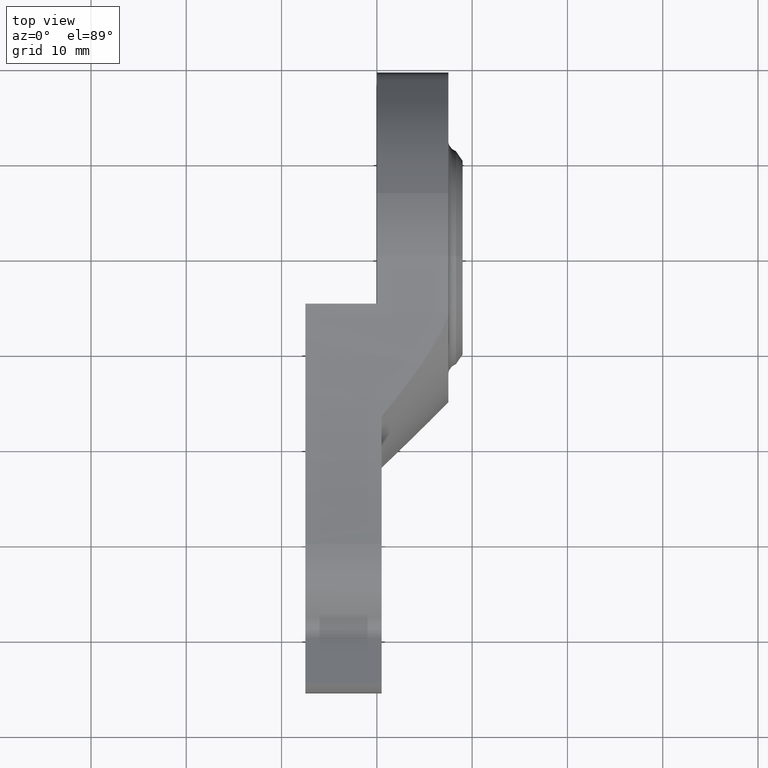
[diagram: clean part render]
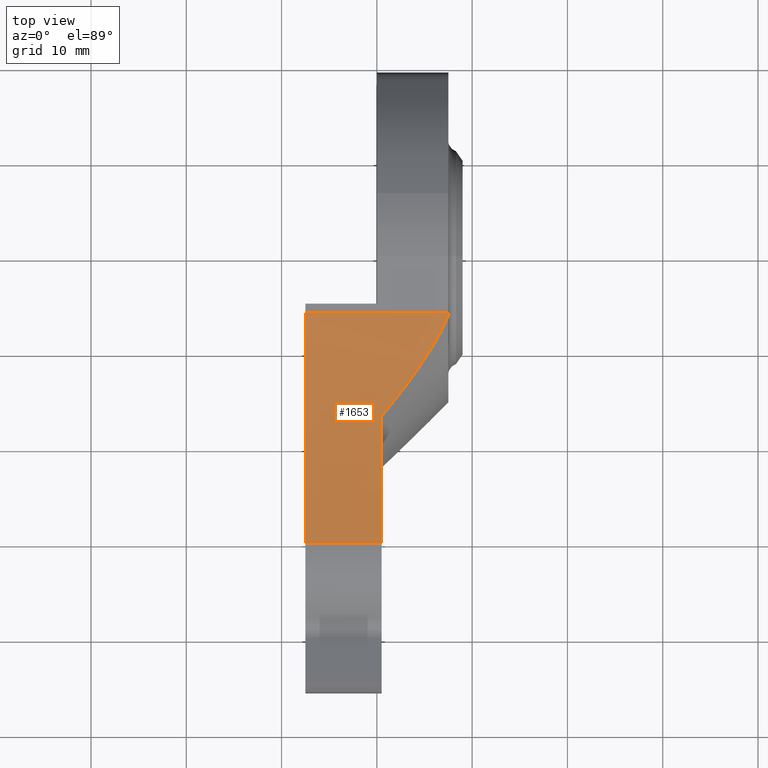
[diagram: same view with one face highlighted and labeled with its STEP entity id]
A machine part, top view. The second image highlights one B-rep face of the part: STEP entity #1653.
In plain terms, the highlighted cylindrical surface (partial cylindrical patch) has radius 100 mm, axis along (1, 0, 0).
Its self-contained STEP definition (entity closure, byte-faithful):
#4 = DIRECTION ( 'NONE',  ( 0.0000000000000000000, 0.0000000000000000000, -1.000000000000000000 ) ) ;
#30 = CARTESIAN_POINT ( 'NONE',  ( 0.4999999999999981681, -16.90208000679909617, 14.37761424728591564 ) ) ;
#32 = CARTESIAN_POINT ( 'NONE',  ( 7.500000000000000000, -6.379320389034159433, 13.78551309796095481 ) ) ;
#62 = CARTESIAN_POINT ( 'NONE',  ( -7.500000000000000000, -30.30422941978169504, 16.77569103434340647 ) ) ;
#128 = DIRECTION ( 'NONE',  ( -1.000000000000000000, -0.0000000000000000000, -0.0000000000000000000 ) ) ;
#165 = CARTESIAN_POINT ( 'NONE',  ( 7.081473535153784304, -7.368431683371166940, 13.78896303512962263 ) ) ;
#225 = VERTEX_POINT ( 'NONE', #1518 ) ;
#234 = LINE ( 'NONE', #1703, #1771 ) ;
#372 = CARTESIAN_POINT ( 'NONE',  ( 7.500000000000000000, -6.030530904630578171, 113.7849048255887681 ) ) ;
#403 = EDGE_LOOP ( 'NONE', ( #718, #1305, #1720, #1144, #1613, #695 ) ) ;
#467 = CARTESIAN_POINT ( 'NONE',  ( 6.592569785825927120, -8.309922148474180759, 13.80671280323406691 ) ) ;
#471 = DIRECTION ( 'NONE',  ( 1.000000000000000000, 0.0000000000000000000, 0.0000000000000000000 ) ) ;
#485 = DIRECTION ( 'NONE',  ( 1.000000000000000000, 0.0000000000000000000, 0.0000000000000000000 ) ) ;
#511 = DIRECTION ( 'NONE',  ( 1.000000000000000000, 0.0000000000000000000, 0.0000000000000000000 ) ) ;
#530 = DIRECTION ( 'NONE',  ( 0.0000000000000000000, 0.0000000000000000000, 1.000000000000000000 ) ) ;
#534 = CIRCLE ( 'NONE', #1893, 99.99999999999998579 ) ;
#555 = EDGE_CURVE ( 'NONE', #897, #1729, #1563, .T. ) ;
#609 = CARTESIAN_POINT ( 'NONE',  ( 4.958070269503722649, -11.02020417791528217, 13.90570156137078683 ) ) ;
#629 = CARTESIAN_POINT ( 'NONE',  ( 0.5000000000000000000, -30.30422941978169504, 16.77569103434340292 ) ) ;
#647 = VECTOR ( 'NONE', #485, 1000.000000000000000 ) ;
#695 = ORIENTED_EDGE ( 'NONE', *, *, #555, .F. ) ;
#718 = ORIENTED_EDGE ( 'NONE', *, *, #1007, .F. ) ;
#754 = CARTESIAN_POINT ( 'NONE',  ( 3.130957710406474526, -13.59878353045965760, 14.06819194200154044 ) ) ;
#897 = VERTEX_POINT ( 'NONE', #1036 ) ;
#903 = CARTESIAN_POINT ( 'NONE',  ( 1.176575255707567935, -16.08943392507654124, 14.28874026501827110 ) ) ;
#904 = AXIS2_PLACEMENT_3D ( 'NONE', #372, #1411, #530 ) ;
#923 = CARTESIAN_POINT ( 'NONE',  ( -46.24134013796409448, -6.030530904630578171, 13.78490482558877872 ) ) ;
#926 = VERTEX_POINT ( 'NONE', #1651 ) ;
#945 = EDGE_CURVE ( 'NONE', #1064, #225, #1133, .T. ) ;
#1003 = VERTEX_POINT ( 'NONE', #629 ) ;
#1005 = CARTESIAN_POINT ( 'NONE',  ( 0.5000000000000004441, -6.030530904630578171, 113.7849048255887681 ) ) ;
#1007 = EDGE_CURVE ( 'NONE', #225, #897, #1848, .T. ) ;
#1036 = CARTESIAN_POINT ( 'NONE',  ( 7.500000000000000000, -6.030530904630578171, 13.78490482558877872 ) ) ;
#1044 = B_SPLINE_CURVE_WITH_KNOTS ( 'NONE', 3,
 ( #1046, #165, #467, #1501, #609, #1665, #754, #1810, #903, #30 ),
 .UNSPECIFIED., .F., .F.,
 ( 4, 2, 2, 2, 4 ),
 ( 5.038543160167370944E-07, 0.003163562636377010955, 0.006326621418438005753, 0.009489680200498999685, 0.01265273898255999362 ),
 .UNSPECIFIED. ) ;
#1046 = CARTESIAN_POINT ( 'NONE',  ( 7.500000000000000000, -6.379320389034159433, 13.78551309796095481 ) ) ;
#1064 = VERTEX_POINT ( 'NONE', #62 ) ;
#1081 = FACE_OUTER_BOUND ( 'NONE', #403, .T. ) ;
#1087 = EDGE_CURVE ( 'NONE', #1064, #1003, #234, .T. ) ;
#1133 = CIRCLE ( 'NONE', #1611, 99.99999999999998579 ) ;
#1144 = ORIENTED_EDGE ( 'NONE', *, *, #1488, .F. ) ;
#1157 = DIRECTION ( 'NONE',  ( 0.0000000000000000000, 0.0000000000000000000, 1.000000000000000000 ) ) ;
#1186 = CARTESIAN_POINT ( 'NONE',  ( -46.24134013796409448, -6.030530904630578171, 113.7849048255887681 ) ) ;
#1266 = AXIS2_PLACEMENT_3D ( 'NONE', #1186, #1644, #4 ) ;
#1305 = ORIENTED_EDGE ( 'NONE', *, *, #945, .F. ) ;
#1359 = CARTESIAN_POINT ( 'NONE',  ( -7.500000000000000000, -6.030530904630578171, 113.7849048255887681 ) ) ;
#1411 = DIRECTION ( 'NONE',  ( -1.000000000000000000, -0.0000000000000000000, 0.0000000000000000000 ) ) ;
#1488 = EDGE_CURVE ( 'NONE', #926, #1003, #534, .T. ) ;
#1501 = CARTESIAN_POINT ( 'NONE',  ( 5.531175501204407929, -10.13601524884442817, 13.86503941935057327 ) ) ;
#1503 = DIRECTION ( 'NONE',  ( 0.0000000000000000000, 0.0000000000000000000, -1.000000000000000000 ) ) ;
#1518 = CARTESIAN_POINT ( 'NONE',  ( -7.500000000000000000, -6.030530904630578171, 13.78490482558877872 ) ) ;
#1563 = CIRCLE ( 'NONE', #904, 99.99999999999998579 ) ;
#1611 = AXIS2_PLACEMENT_3D ( 'NONE', #1359, #471, #1503 ) ;
#1613 = ORIENTED_EDGE ( 'NONE', *, *, #1892, .F. ) ;
#1644 = DIRECTION ( 'NONE',  ( 1.000000000000000000, 0.0000000000000000000, 0.0000000000000000000 ) ) ;
#1651 = CARTESIAN_POINT ( 'NONE',  ( 0.4999999999999981681, -16.90208000679909617, 14.37761424728591564 ) ) ;
#1653 = ADVANCED_FACE ( 'NONE', ( #1081 ), #1846, .F. ) ;
#1665 = CARTESIAN_POINT ( 'NONE',  ( 3.758103604114319207, -12.75168387341714293, 14.00726110296282556 ) ) ;
#1703 = CARTESIAN_POINT ( 'NONE',  ( -46.24134013796409448, -30.30422941978169504, 16.77569103434340292 ) ) ;
#1720 = ORIENTED_EDGE ( 'NONE', *, *, #1087, .T. ) ;
#1729 = VERTEX_POINT ( 'NONE', #32 ) ;
#1771 = VECTOR ( 'NONE', #511, 1000.000000000000000 ) ;
#1810 = CARTESIAN_POINT ( 'NONE',  ( 1.840262739549234583, -15.26770499610387866, 14.20892433370531549 ) ) ;
#1846 = CYLINDRICAL_SURFACE ( 'NONE', #1266, 99.99999999999998579 ) ;
#1848 = LINE ( 'NONE', #923, #647 ) ;
#1892 = EDGE_CURVE ( 'NONE', #1729, #926, #1044, .T. ) ;
#1893 = AXIS2_PLACEMENT_3D ( 'NONE', #1005, #128, #1157 ) ;